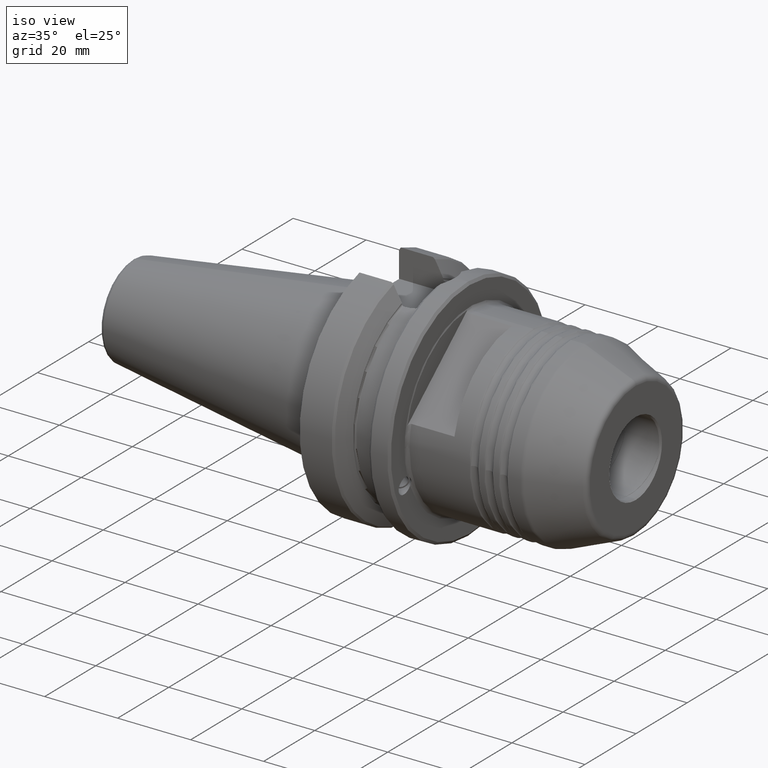
[diagram: clean part render]
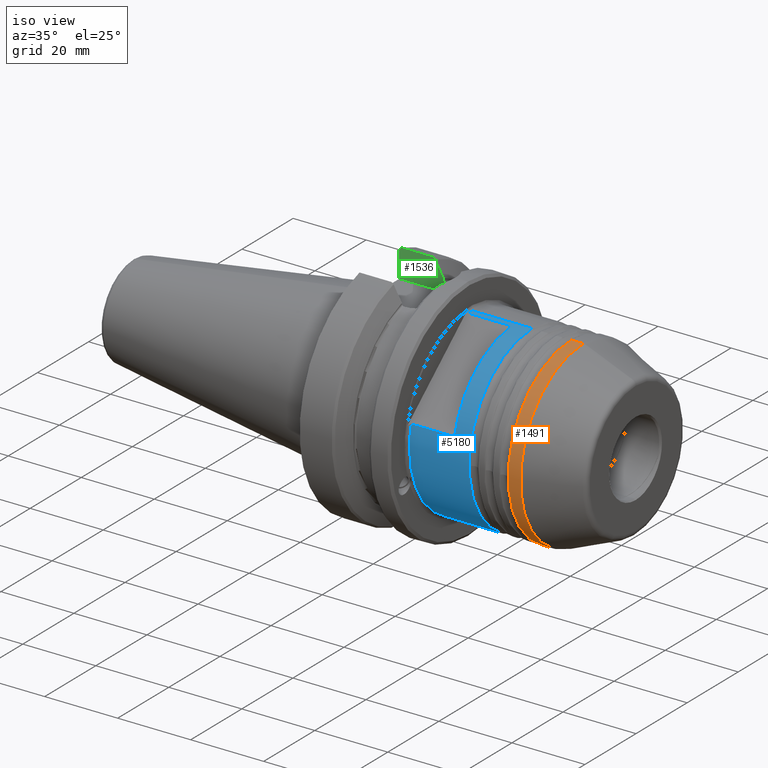
[diagram: same view with three faces highlighted in distinct colors, each labeled with its STEP entity id]
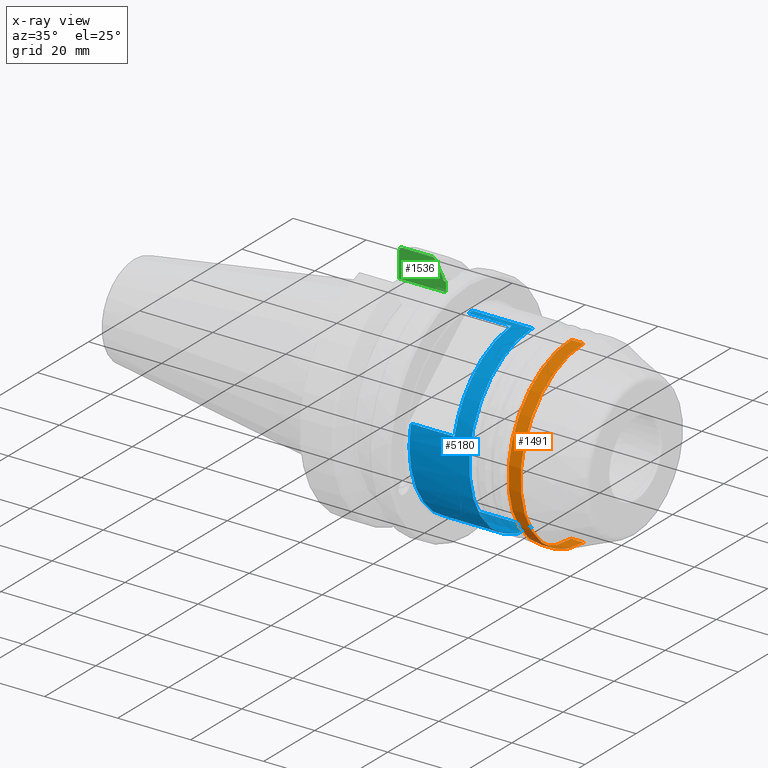
[diagram: x-ray of the same camera — body ghosted, the three highlighted faces saturated]
A machine part, iso view with three faces highlighted in distinct colors.
The next image is the same camera in x-ray (body ghosted, the three faces saturated) — at least one of them is partly hidden behind the body in this view.
Their STEP definitions:

[orange] entity #1491 — the highlighted cylindrical surface (partial cylindrical patch) has radius 24.625 mm, axis along (-1, 0, 0).
#250 = ORIENTED_EDGE ( 'NONE', *, *, #6793, .T. ) ;
#427 = CARTESIAN_POINT ( 'NONE',  ( 123.5888758312286800, 0.0000000000000000000, 24.62500000000000000 ) ) ;
#573 = VERTEX_POINT ( 'NONE', #6316 ) ;
#1188 = CARTESIAN_POINT ( 'NONE',  ( 140.1750000000000100, 3.015692742900357400E-015, -24.62500000000000000 ) ) ;
#1267 = DIRECTION ( 'NONE',  ( 0.0000000000000000000, 0.0000000000000000000, -1.000000000000000000 ) ) ;
#1360 = AXIS2_PLACEMENT_3D ( 'NONE', #7183, #2503, #1267 ) ;
#1491 = ADVANCED_FACE ( 'NONE', ( #5049 ), #6596, .T. ) ;
#1553 = CARTESIAN_POINT ( 'NONE',  ( 123.5888758312286800, 0.0000000000000000000, 0.0000000000000000000 ) ) ;
#1699 = DIRECTION ( 'NONE',  ( 0.0000000000000000000, 0.0000000000000000000, 1.000000000000000000 ) ) ;
#2164 = EDGE_LOOP ( 'NONE', ( #7523, #5059, #2984, #250 ) ) ;
#2503 = DIRECTION ( 'NONE',  ( 1.000000000000000000, -0.0000000000000000000, -0.0000000000000000000 ) ) ;
#2791 = CIRCLE ( 'NONE', #7317, 24.62500000000000000 ) ;
#2978 = CIRCLE ( 'NONE', #1360, 24.62500000000000000 ) ;
#2984 = ORIENTED_EDGE ( 'NONE', *, *, #6197, .T. ) ;
#3352 = CARTESIAN_POINT ( 'NONE',  ( 140.1750000000000100, 0.0000000000000000000, 24.62500000000000000 ) ) ;
#3699 = VECTOR ( 'NONE', #5859, 1000.000000000000000 ) ;
#4181 = VERTEX_POINT ( 'NONE', #5836 ) ;
#4948 = AXIS2_PLACEMENT_3D ( 'NONE', #7496, #5170, #1699 ) ;
#5049 = FACE_OUTER_BOUND ( 'NONE', #2164, .T. ) ;
#5059 = ORIENTED_EDGE ( 'NONE', *, *, #7443, .T. ) ;
#5114 = CARTESIAN_POINT ( 'NONE',  ( 120.2416407864999000, 0.0000000000000000000, 24.62500000000000000 ) ) ;
#5170 = DIRECTION ( 'NONE',  ( -1.000000000000000000, 0.0000000000000000000, 0.0000000000000000000 ) ) ;
#5215 = EDGE_CURVE ( 'NONE', #4181, #573, #5803, .T. ) ;
#5640 = DIRECTION ( 'NONE',  ( 0.0000000000000000000, 0.0000000000000000000, -1.000000000000000000 ) ) ;
#5722 = DIRECTION ( 'NONE',  ( -1.000000000000000000, 0.0000000000000000000, 0.0000000000000000000 ) ) ;
#5803 = LINE ( 'NONE', #1188, #3699 ) ;
#5836 = CARTESIAN_POINT ( 'NONE',  ( 123.5888758312286800, 3.015692742900357400E-015, -24.62500000000000000 ) ) ;
#5859 = DIRECTION ( 'NONE',  ( -1.000000000000000000, 0.0000000000000000000, 0.0000000000000000000 ) ) ;
#6197 = EDGE_CURVE ( 'NONE', #7171, #6641, #7258, .T. ) ;
#6316 = CARTESIAN_POINT ( 'NONE',  ( 120.2416407864999000, 3.015692742900357400E-015, -24.62500000000000000 ) ) ;
#6596 = CYLINDRICAL_SURFACE ( 'NONE', #4948, 24.62500000000000000 ) ;
#6641 = VERTEX_POINT ( 'NONE', #5114 ) ;
#6793 = EDGE_CURVE ( 'NONE', #6641, #573, #2978, .T. ) ;
#6860 = DIRECTION ( 'NONE',  ( -1.000000000000000000, 0.0000000000000000000, 0.0000000000000000000 ) ) ;
#7171 = VERTEX_POINT ( 'NONE', #427 ) ;
#7183 = CARTESIAN_POINT ( 'NONE',  ( 120.2416407864999000, 0.0000000000000000000, 0.0000000000000000000 ) ) ;
#7258 = LINE ( 'NONE', #3352, #7450 ) ;
#7317 = AXIS2_PLACEMENT_3D ( 'NONE', #1553, #6860, #5640 ) ;
#7443 = EDGE_CURVE ( 'NONE', #4181, #7171, #2791, .T. ) ;
#7450 = VECTOR ( 'NONE', #5722, 1000.000000000000000 ) ;
#7496 = CARTESIAN_POINT ( 'NONE',  ( 140.1750000000000100, 0.0000000000000000000, 0.0000000000000000000 ) ) ;
#7523 = ORIENTED_EDGE ( 'NONE', *, *, #5215, .F. ) ;

[blue] entity #5180 — the highlighted cylindrical surface (partial cylindrical patch) has radius 24.625 mm, axis along (-1, 0, 0).
#12 = LINE ( 'NONE', #2852, #5531 ) ;
#85 = DIRECTION ( 'NONE',  ( 0.0000000000000000000, 1.000000000000000000, 0.0000000000000000000 ) ) ;
#108 = CARTESIAN_POINT ( 'NONE',  ( 93.20000000000000300, -1.511753966832658900, 24.57855213278055500 ) ) ;
#203 = EDGE_LOOP ( 'NONE', ( #4320, #2905, #6577, #4362, #1880, #5577, #7025, #3172, #3453 ) ) ;
#1228 = EDGE_CURVE ( 'NONE', #4274, #6910, #5297, .T. ) ;
#1244 = CARTESIAN_POINT ( 'NONE',  ( 93.20000000000000300, 0.0000000000000000000, 0.0000000000000000000 ) ) ;
#1383 = CARTESIAN_POINT ( 'NONE',  ( 93.20000000000000300, 0.0000000000000000000, 0.0000000000000000000 ) ) ;
#1499 = CARTESIAN_POINT ( 'NONE',  ( 105.0000000000000000, -1.511753966832673200, 24.57855213278063600 ) ) ;
#1502 = VECTOR ( 'NONE', #4840, 1000.000000000000000 ) ;
#1508 = DIRECTION ( 'NONE',  ( -1.000000000000000000, 0.0000000000000000000, 0.0000000000000000000 ) ) ;
#1531 = CARTESIAN_POINT ( 'NONE',  ( 105.0000000000000400, -23.33174015498512300, 8.297528648040286100 ) ) ;
#1532 = DIRECTION ( 'NONE',  ( 1.000000000000000000, -0.0000000000000000000, -0.0000000000000000000 ) ) ;
#1864 = CARTESIAN_POINT ( 'NONE',  ( 140.1750000000000100, -23.94263537675528800, 5.756807814730863400 ) ) ;
#1874 = LINE ( 'NONE', #4902, #6173 ) ;
#1880 = ORIENTED_EDGE ( 'NONE', *, *, #7276, .T. ) ;
#2111 = DIRECTION ( 'NONE',  ( 0.0000000000000000000, 1.000000000000000000, 0.0000000000000000000 ) ) ;
#2357 = EDGE_CURVE ( 'NONE', #6910, #5732, #6616, .T. ) ;
#2504 = VECTOR ( 'NONE', #5999, 1000.000000000000000 ) ;
#2784 = VERTEX_POINT ( 'NONE', #108 ) ;
#2852 = CARTESIAN_POINT ( 'NONE',  ( 140.1750000000000100, 0.0000000000000000000, 24.62500000000000000 ) ) ;
#2905 = ORIENTED_EDGE ( 'NONE', *, *, #5254, .T. ) ;
#2939 = CARTESIAN_POINT ( 'NONE',  ( 109.5583592135001000, 0.0000000000000000000, 24.62500000000000000 ) ) ;
#2970 = CARTESIAN_POINT ( 'NONE',  ( 109.5583592135001000, 0.0000000000000000000, 0.0000000000000000000 ) ) ;
#2981 = CARTESIAN_POINT ( 'NONE',  ( 105.0000000000000000, -1.511753966832673200, 24.57855213278063600 ) ) ;
#3016 = EDGE_CURVE ( 'NONE', #4850, #2784, #4778, .T. ) ;
#3058 = LINE ( 'NONE', #4116, #1502 ) ;
#3171 = DIRECTION ( 'NONE',  ( 1.000000000000000000, -0.0000000000000000000, -0.0000000000000000000 ) ) ;
#3172 = ORIENTED_EDGE ( 'NONE', *, *, #5500, .T. ) ;
#3256 = CYLINDRICAL_SURFACE ( 'NONE', #3664, 24.62500000000000000 ) ;
#3292 = VERTEX_POINT ( 'NONE', #5436 ) ;
#3341 = CARTESIAN_POINT ( 'NONE',  ( 105.0000000000000100, -4.119956383720567500, 24.41812932476676000 ) ) ;
#3453 = ORIENTED_EDGE ( 'NONE', *, *, #5396, .T. ) ;
#3626 = DIRECTION ( 'NONE',  ( 1.000000000000000000, -0.0000000000000000000, -0.0000000000000000000 ) ) ;
#3664 = AXIS2_PLACEMENT_3D ( 'NONE', #5615, #1508, #4117 ) ;
#3733 = CARTESIAN_POINT ( 'NONE',  ( 93.20000000000000300, 0.0000000000000000000, 0.0000000000000000000 ) ) ;
#3860 = VERTEX_POINT ( 'NONE', #2939 ) ;
#3894 = CIRCLE ( 'NONE', #7305, 24.62500000000000000 ) ;
#4116 = CARTESIAN_POINT ( 'NONE',  ( 140.1750000000000100, -1.511753966831995500, 24.57855213277966700 ) ) ;
#4117 = DIRECTION ( 'NONE',  ( 0.0000000000000000000, 0.0000000000000000000, 1.000000000000000000 ) ) ;
#4139 = DIRECTION ( 'NONE',  ( 0.0000000000000000000, 0.0000000000000000000, -1.000000000000000000 ) ) ;
#4226 = EDGE_CURVE ( 'NONE', #3860, #4850, #12, .T. ) ;
#4274 = VERTEX_POINT ( 'NONE', #2981 ) ;
#4320 = ORIENTED_EDGE ( 'NONE', *, *, #5537, .F. ) ;
#4362 = ORIENTED_EDGE ( 'NONE', *, *, #3016, .T. ) ;
#4375 = CARTESIAN_POINT ( 'NONE',  ( 109.5583592135001000, 3.015692742900357400E-015, -24.62500000000000000 ) ) ;
#4520 = CARTESIAN_POINT ( 'NONE',  ( 104.9999999999999900, -17.83041961964186600, 17.18415597322965400 ) ) ;
#4535 = VERTEX_POINT ( 'NONE', #4375 ) ;
#4702 = CIRCLE ( 'NONE', #6112, 24.62500000000000000 ) ;
#4778 = CIRCLE ( 'NONE', #6313, 24.62500000000000000 ) ;
#4823 = CARTESIAN_POINT ( 'NONE',  ( 93.20000000000000300, 0.0000000000000000000, 24.62500000000000000 ) ) ;
#4840 = DIRECTION ( 'NONE',  ( 1.000000000000000000, -0.0000000000000000000, -0.0000000000000000000 ) ) ;
#4850 = VERTEX_POINT ( 'NONE', #4823 ) ;
#4870 = CARTESIAN_POINT ( 'NONE',  ( 93.20000000000000300, -24.62500000000000000, -3.015692742900357400E-015 ) ) ;
#4902 = CARTESIAN_POINT ( 'NONE',  ( 140.1750000000000100, 3.015692742900357400E-015, -24.62500000000000000 ) ) ;
#4927 = CARTESIAN_POINT ( 'NONE',  ( 93.20000000000000300, -23.94263537675687200, 5.756807814731629100 ) ) ;
#5180 = ADVANCED_FACE ( 'NONE', ( #7368 ), #3256, .T. ) ;
#5254 = EDGE_CURVE ( 'NONE', #4535, #3860, #4702, .T. ) ;
#5297 = B_SPLINE_CURVE_WITH_KNOTS ( 'NONE', 3,
 ( #1499, #3341, #7424, #5584, #5638, #4520, #6748, #6178, #1531, #7352 ),
 .UNSPECIFIED., .F., .F.,
 ( 4, 2, 2, 2, 4 ),
 ( 0.0000000000000000000, 0.2500000000000000600, 0.5000000000000002200, 0.7500000000000002200, 1.000000000000000000 ),
 .UNSPECIFIED. ) ;
#5326 = AXIS2_PLACEMENT_3D ( 'NONE', #1244, #3626, #85 ) ;
#5396 = EDGE_CURVE ( 'NONE', #5558, #3292, #6360, .T. ) ;
#5436 = CARTESIAN_POINT ( 'NONE',  ( 93.20000000000000300, 3.015692742900357400E-015, -24.62500000000000000 ) ) ;
#5500 = EDGE_CURVE ( 'NONE', #5732, #5558, #3894, .T. ) ;
#5531 = VECTOR ( 'NONE', #7615, 1000.000000000000000 ) ;
#5537 = EDGE_CURVE ( 'NONE', #4535, #3292, #1874, .T. ) ;
#5558 = VERTEX_POINT ( 'NONE', #4870 ) ;
#5577 = ORIENTED_EDGE ( 'NONE', *, *, #1228, .T. ) ;
#5584 = CARTESIAN_POINT ( 'NONE',  ( 105.0000000000000000, -11.55583594055118500, 21.90163774789135700 ) ) ;
#5615 = CARTESIAN_POINT ( 'NONE',  ( 140.1750000000000100, 0.0000000000000000000, 0.0000000000000000000 ) ) ;
#5638 = CARTESIAN_POINT ( 'NONE',  ( 105.0000000000000000, -13.82687015742103800, 20.54353285037930700 ) ) ;
#5732 = VERTEX_POINT ( 'NONE', #4927 ) ;
#5999 = DIRECTION ( 'NONE',  ( -1.000000000000000000, 0.0000000000000000000, 0.0000000000000000000 ) ) ;
#6072 = CARTESIAN_POINT ( 'NONE',  ( 105.0000000000000000, -23.94263537675749700, 5.756807814732374200 ) ) ;
#6112 = AXIS2_PLACEMENT_3D ( 'NONE', #2970, #7051, #4139 ) ;
#6173 = VECTOR ( 'NONE', #7255, 1000.000000000000000 ) ;
#6178 = CARTESIAN_POINT ( 'NONE',  ( 105.0000000000000400, -22.31314739932492200, 10.73976412500730500 ) ) ;
#6313 = AXIS2_PLACEMENT_3D ( 'NONE', #1383, #1532, #2111 ) ;
#6360 = CIRCLE ( 'NONE', #5326, 24.62500000000000000 ) ;
#6577 = ORIENTED_EDGE ( 'NONE', *, *, #4226, .T. ) ;
#6616 = LINE ( 'NONE', #1864, #2504 ) ;
#6748 = CARTESIAN_POINT ( 'NONE',  ( 105.0000000000000100, -19.56225280529420000, 15.18345630963363700 ) ) ;
#6910 = VERTEX_POINT ( 'NONE', #6072 ) ;
#7025 = ORIENTED_EDGE ( 'NONE', *, *, #2357, .T. ) ;
#7051 = DIRECTION ( 'NONE',  ( -1.000000000000000000, 0.0000000000000000000, 0.0000000000000000000 ) ) ;
#7146 = DIRECTION ( 'NONE',  ( 0.0000000000000000000, 1.000000000000000000, -5.329070518200751400E-015 ) ) ;
#7255 = DIRECTION ( 'NONE',  ( -1.000000000000000000, 0.0000000000000000000, 0.0000000000000000000 ) ) ;
#7276 = EDGE_CURVE ( 'NONE', #2784, #4274, #3058, .T. ) ;
#7305 = AXIS2_PLACEMENT_3D ( 'NONE', #3733, #3171, #7146 ) ;
#7352 = CARTESIAN_POINT ( 'NONE',  ( 105.0000000000000000, -23.94263537675749700, 5.756807814732374200 ) ) ;
#7368 = FACE_OUTER_BOUND ( 'NONE', #203, .T. ) ;
#7424 = CARTESIAN_POINT ( 'NONE',  ( 105.0000000000000000, -6.701965591924262000, 23.83910102183925500 ) ) ;
#7615 = DIRECTION ( 'NONE',  ( -1.000000000000000000, 0.0000000000000000000, 0.0000000000000000000 ) ) ;

[green] entity #1536 — the highlighted planar face has unit normal (-0, 1, 0).
#33 = VERTEX_POINT ( 'NONE', #139 ) ;
#61 = EDGE_CURVE ( 'NONE', #33, #4331, #3285, .T. ) ;
#139 = CARTESIAN_POINT ( 'NONE',  ( 80.00000000000000000, 8.095000000000997200, 25.23333063628311000 ) ) ;
#212 = ORIENTED_EDGE ( 'NONE', *, *, #2597, .F. ) ;
#297 = DIRECTION ( 'NONE',  ( -0.0000000000000000000, 0.0000000000000000000, -1.000000000000000000 ) ) ;
#302 = ORIENTED_EDGE ( 'NONE', *, *, #2654, .T. ) ;
#399 = DIRECTION ( 'NONE',  ( 0.0000000000000000000, 0.0000000000000000000, 1.000000000000000000 ) ) ;
#523 = CARTESIAN_POINT ( 'NONE',  ( 67.89999999999879800, 8.095000000000000600, 30.43019236301000100 ) ) ;
#550 = CARTESIAN_POINT ( 'NONE',  ( 67.40000000000000600, 8.095000000000000600, 29.69067648980253800 ) ) ;
#633 = CARTESIAN_POINT ( 'NONE',  ( 77.23772630458429900, 8.095000000000832000, 30.01609247137118100 ) ) ;
#704 = EDGE_CURVE ( 'NONE', #7281, #3131, #5629, .T. ) ;
#773 = CARTESIAN_POINT ( 'NONE',  ( 79.73337184933730300, 8.095000000000002400, 25.29366945704310500 ) ) ;
#912 = ORIENTED_EDGE ( 'NONE', *, *, #2625, .F. ) ;
#961 = CARTESIAN_POINT ( 'NONE',  ( 78.74941298799161900, 8.095000000000000600, 27.29811116971029300 ) ) ;
#1015 = ORIENTED_EDGE ( 'NONE', *, *, #61, .T. ) ;
#1035 = LINE ( 'NONE', #7318, #6345 ) ;
#1248 = ORIENTED_EDGE ( 'NONE', *, *, #5992, .F. ) ;
#1291 = CARTESIAN_POINT ( 'NONE',  ( 79.50000000000000000, 8.095000000000000600, 25.75793033222971900 ) ) ;
#1392 = VERTEX_POINT ( 'NONE', #2844 ) ;
#1504 = VECTOR ( 'NONE', #2021, 1000.000000000000000 ) ;
#1536 = ADVANCED_FACE ( 'NONE', ( #3493 ), #7059, .F. ) ;
#1585 = VERTEX_POINT ( 'NONE', #633 ) ;
#1714 = B_SPLINE_CURVE_WITH_KNOTS ( 'NONE', 3,
 ( #2117, #2096, #961, #5034 ),
 .UNSPECIFIED., .F., .F.,
 ( 4, 4 ),
 ( -3.608224830031758800E-015, 0.004665121283768728500 ),
 .UNSPECIFIED. ) ;
#1985 = CARTESIAN_POINT ( 'NONE',  ( 76.66646710188548800, 8.095000000000000600, 30.43019236301000100 ) ) ;
#2021 = DIRECTION ( 'NONE',  ( 1.000000000000000000, 0.0000000000000000000, 0.0000000000000000000 ) ) ;
#2096 = CARTESIAN_POINT ( 'NONE',  ( 77.99487190881473000, 8.095000000000000600, 28.65782391763656600 ) ) ;
#2117 = CARTESIAN_POINT ( 'NONE',  ( 77.23772630458429900, 8.095000000000832000, 30.01609247137118100 ) ) ;
#2160 = EDGE_CURVE ( 'NONE', #7281, #6583, #5417, .T. ) ;
#2245 = VECTOR ( 'NONE', #399, 1000.000000000000000 ) ;
#2251 = CARTESIAN_POINT ( 'NONE',  ( 80.30500000000002100, 8.095000000000000600, 22.59999999999999800 ) ) ;
#2558 = CARTESIAN_POINT ( 'NONE',  ( 79.50000000000001400, 8.095000000000000600, 25.62274329815183200 ) ) ;
#2597 = EDGE_CURVE ( 'NONE', #5414, #5764, #2887, .T. ) ;
#2625 = EDGE_CURVE ( 'NONE', #1585, #1392, #1714, .T. ) ;
#2654 = EDGE_CURVE ( 'NONE', #4331, #1392, #4786, .T. ) ;
#2679 = EDGE_LOOP ( 'NONE', ( #2717, #7000, #212, #1248, #1015, #302, #912, #5331, #3829, #4506 ) ) ;
#2717 = ORIENTED_EDGE ( 'NONE', *, *, #4656, .F. ) ;
#2844 = CARTESIAN_POINT ( 'NONE',  ( 79.49999999999846500, 8.095000000000000600, 25.93620591420533800 ) ) ;
#2885 = LINE ( 'NONE', #2251, #3795 ) ;
#2887 = LINE ( 'NONE', #6209, #5158 ) ;
#2943 = CARTESIAN_POINT ( 'NONE',  ( 67.89999999999879800, 8.095000000000000600, 30.43019236301000100 ) ) ;
#2946 = CARTESIAN_POINT ( 'NONE',  ( 80.30500000000002100, 8.095000000000499800, 25.23333063628327000 ) ) ;
#3131 = VERTEX_POINT ( 'NONE', #4154 ) ;
#3285 = B_SPLINE_CURVE_WITH_KNOTS ( 'NONE', 3,
 ( #6544, #4316, #773, #6643, #2558, #7150 ),
 .UNSPECIFIED., .F., .F.,
 ( 4, 2, 4 ),
 ( 0.0000000000000000000, 0.0004001897600596796500, 0.0008003795201193593000 ),
 .UNSPECIFIED. ) ;
#3293 = CARTESIAN_POINT ( 'NONE',  ( 67.40000000000000600, 8.095000000000000600, 0.0000000000000000000 ) ) ;
#3493 = FACE_OUTER_BOUND ( 'NONE', #2679, .T. ) ;
#3549 = CARTESIAN_POINT ( 'NONE',  ( 0.0000000000000000000, 8.095000000000000600, 22.50000000000000000 ) ) ;
#3795 = VECTOR ( 'NONE', #7072, 1000.000000000000000 ) ;
#3829 = ORIENTED_EDGE ( 'NONE', *, *, #2160, .F. ) ;
#3900 = LINE ( 'NONE', #3293, #2245 ) ;
#4154 = CARTESIAN_POINT ( 'NONE',  ( 67.40000000000000600, 8.095000000000000600, 29.69067648980253800 ) ) ;
#4207 = B_SPLINE_CURVE_WITH_KNOTS ( 'NONE', 3,
 ( #4894, #4308, #6635, #1985 ),
 .UNSPECIFIED., .F., .F.,
 ( 4, 4 ),
 ( 0.0000000000000000000, 0.0007055606259729629600 ),
 .UNSPECIFIED. ) ;
#4308 = CARTESIAN_POINT ( 'NONE',  ( 77.04733685721844000, 8.095000000000832000, 30.15416754028962700 ) ) ;
#4316 = CARTESIAN_POINT ( 'NONE',  ( 79.86464127907015600, 8.095000000000995400, 25.23333063628310300 ) ) ;
#4331 = VERTEX_POINT ( 'NONE', #1291 ) ;
#4501 = DIRECTION ( 'NONE',  ( 1.000000000000000000, -0.0000000000000000000, -0.0000000000000000000 ) ) ;
#4506 = ORIENTED_EDGE ( 'NONE', *, *, #704, .T. ) ;
#4656 = EDGE_CURVE ( 'NONE', #7138, #3131, #3900, .T. ) ;
#4708 = AXIS2_PLACEMENT_3D ( 'NONE', #3549, #5273, #6521 ) ;
#4786 = LINE ( 'NONE', #7507, #7083 ) ;
#4894 = CARTESIAN_POINT ( 'NONE',  ( 77.23772630458429900, 8.095000000000832000, 30.01609247137118100 ) ) ;
#5034 = CARTESIAN_POINT ( 'NONE',  ( 79.49999999999846500, 8.095000000000000600, 25.93620591420533800 ) ) ;
#5110 = CARTESIAN_POINT ( 'NONE',  ( 67.40000000000000600, 8.095000000000000600, 22.59999999999999800 ) ) ;
#5158 = VECTOR ( 'NONE', #297, 1000.000000000000000 ) ;
#5273 = DIRECTION ( 'NONE',  ( -0.0000000000000000000, 1.000000000000000000, 0.0000000000000000000 ) ) ;
#5331 = ORIENTED_EDGE ( 'NONE', *, *, #7356, .T. ) ;
#5414 = VERTEX_POINT ( 'NONE', #2946 ) ;
#5417 = LINE ( 'NONE', #5523, #1504 ) ;
#5523 = CARTESIAN_POINT ( 'NONE',  ( 0.0000000000000000000, 8.095000000000000600, 30.43019236301000100 ) ) ;
#5629 = B_SPLINE_CURVE_WITH_KNOTS ( 'NONE', 3,
 ( #523, #6484, #5823, #550 ),
 .UNSPECIFIED., .F., .F.,
 ( 4, 4 ),
 ( 2.634669780790200700E-015, 0.0008926834415005702800 ),
 .UNSPECIFIED. ) ;
#5756 = CARTESIAN_POINT ( 'NONE',  ( 76.66646710188548800, 8.095000000000000600, 30.43019236301000100 ) ) ;
#5764 = VERTEX_POINT ( 'NONE', #6724 ) ;
#5823 = CARTESIAN_POINT ( 'NONE',  ( 67.56657038391520600, 8.095000000000000600, 29.93724685198257200 ) ) ;
#5992 = EDGE_CURVE ( 'NONE', #33, #5414, #1035, .T. ) ;
#6209 = CARTESIAN_POINT ( 'NONE',  ( 80.30500000000002100, 8.095000000000000600, 22.50000000000000000 ) ) ;
#6345 = VECTOR ( 'NONE', #4501, 1000.000000000000000 ) ;
#6484 = CARTESIAN_POINT ( 'NONE',  ( 67.73323930766133600, 8.095000000000848000, 30.18375067052916800 ) ) ;
#6521 = DIRECTION ( 'NONE',  ( 0.0000000000000000000, -0.0000000000000000000, 1.000000000000000000 ) ) ;
#6544 = CARTESIAN_POINT ( 'NONE',  ( 80.00000000000000000, 8.095000000000997200, 25.23333063628311000 ) ) ;
#6583 = VERTEX_POINT ( 'NONE', #5756 ) ;
#6635 = CARTESIAN_POINT ( 'NONE',  ( 76.85691671129357900, 8.095000000000000600, 30.29220028859796100 ) ) ;
#6643 = CARTESIAN_POINT ( 'NONE',  ( 79.55141056256516700, 8.095000000000000600, 25.48911269949085300 ) ) ;
#6724 = CARTESIAN_POINT ( 'NONE',  ( 80.30500000000002100, 8.095000000000000600, 22.59999999999999800 ) ) ;
#7000 = ORIENTED_EDGE ( 'NONE', *, *, #7177, .T. ) ;
#7059 = PLANE ( 'NONE',  #4708 ) ;
#7072 = DIRECTION ( 'NONE',  ( 1.000000000000000000, 0.0000000000000000000, 0.0000000000000000000 ) ) ;
#7083 = VECTOR ( 'NONE', #7565, 1000.000000000000000 ) ;
#7138 = VERTEX_POINT ( 'NONE', #5110 ) ;
#7150 = CARTESIAN_POINT ( 'NONE',  ( 79.50000000000000000, 8.095000000000000600, 25.75793033222971900 ) ) ;
#7177 = EDGE_CURVE ( 'NONE', #7138, #5764, #2885, .T. ) ;
#7281 = VERTEX_POINT ( 'NONE', #2943 ) ;
#7318 = CARTESIAN_POINT ( 'NONE',  ( 87.86688618792000200, 8.095000000000997200, 25.23333063628311000 ) ) ;
#7356 = EDGE_CURVE ( 'NONE', #1585, #6583, #4207, .T. ) ;
#7507 = CARTESIAN_POINT ( 'NONE',  ( 79.50000000000000000, 8.095000000000000600, 0.0000000000000000000 ) ) ;
#7565 = DIRECTION ( 'NONE',  ( 0.0000000000000000000, 0.0000000000000000000, 1.000000000000000000 ) ) ;